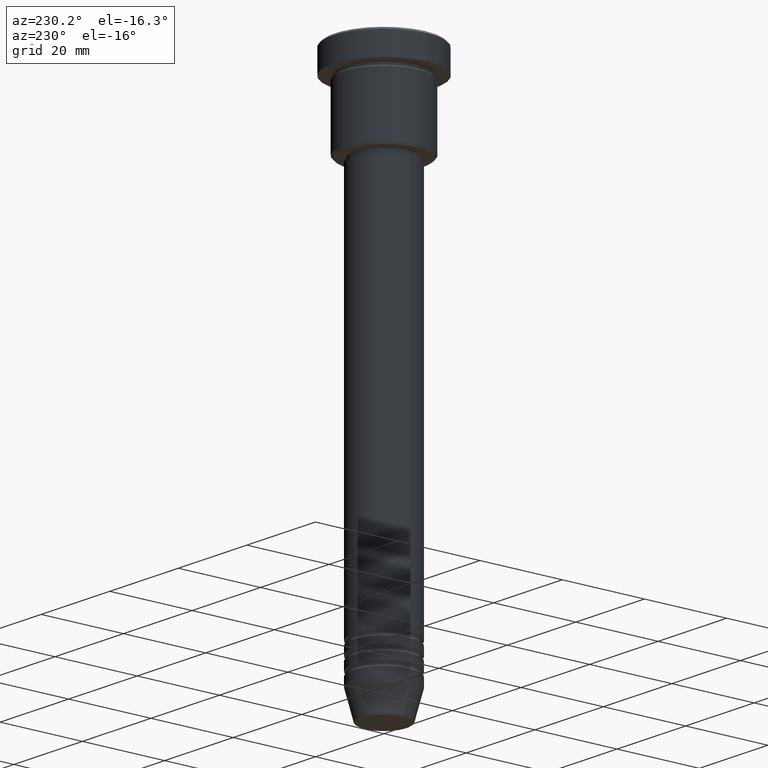
[diagram: clean part render]
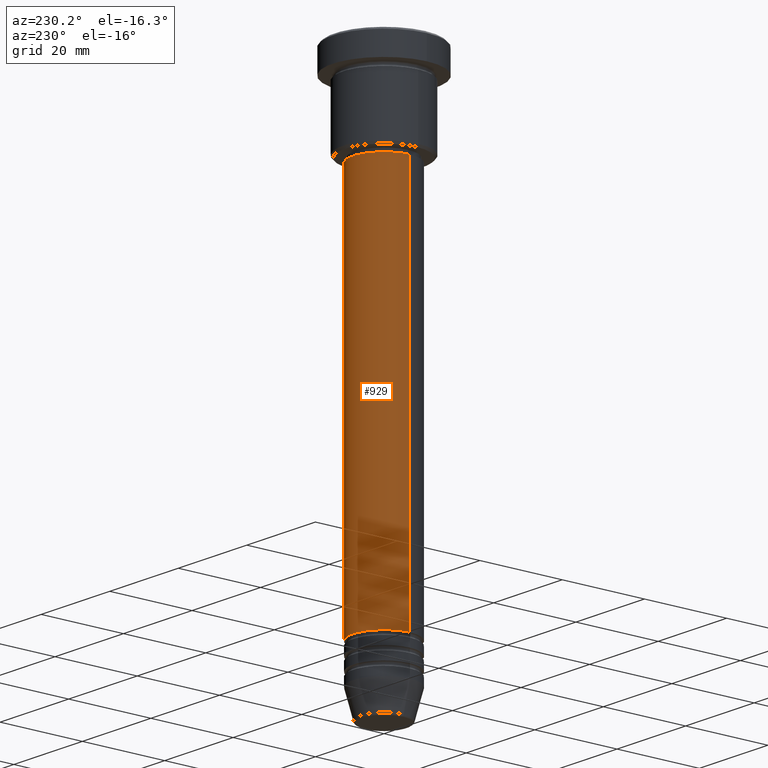
[diagram: same view with one face highlighted and labeled with its STEP entity id]
A machine part, auxiliary view. The second image highlights one B-rep face of the part: STEP entity #929.
In plain terms, the highlighted cylindrical surface (partial cylindrical patch) has radius 7.5 mm, axis along (-0, -0, 1).
Its self-contained STEP definition (entity closure, byte-faithful):
#7 = DIRECTION ( 'NONE',  ( -0.000000000000000000, -0.000000000000000000, 1.000000000000000000 ) ) ;
#33 = CARTESIAN_POINT ( 'NONE',  ( 7.500000000000000000, 0.000000000000000000, -115.9999999999999574 ) ) ;
#108 = AXIS2_PLACEMENT_3D ( 'NONE', #641, #7, #1001 ) ;
#127 = EDGE_CURVE ( 'NONE', #453, #673, #178, .T. ) ;
#174 = VECTOR ( 'NONE', #539, 1000.000000000000000 ) ;
#178 = LINE ( 'NONE', #335, #174 ) ;
#214 = DIRECTION ( 'NONE',  ( -0.000000000000000000, -0.000000000000000000, 1.000000000000000000 ) ) ;
#307 = CARTESIAN_POINT ( 'NONE',  ( 0.000000000000000000, 0.000000000000000000, -115.9999999999999574 ) ) ;
#335 = CARTESIAN_POINT ( 'NONE',  ( 7.500000000000000000, 0.000000000000000000, 0.000000000000000000 ) ) ;
#396 = VERTEX_POINT ( 'NONE', #856 ) ;
#426 = ORIENTED_EDGE ( 'NONE', *, *, #490, .T. ) ;
#428 = VERTEX_POINT ( 'NONE', #582 ) ;
#432 = ORIENTED_EDGE ( 'NONE', *, *, #127, .F. ) ;
#444 = AXIS2_PLACEMENT_3D ( 'NONE', #307, #489, #665 ) ;
#447 = AXIS2_PLACEMENT_3D ( 'NONE', #680, #214, #667 ) ;
#453 = VERTEX_POINT ( 'NONE', #33 ) ;
#485 = VECTOR ( 'NONE', #913, 1000.000000000000000 ) ;
#489 = DIRECTION ( 'NONE',  ( -0.000000000000000000, -0.000000000000000000, 1.000000000000000000 ) ) ;
#490 = EDGE_CURVE ( 'NONE', #453, #428, #961, .T. ) ;
#539 = DIRECTION ( 'NONE',  ( -0.000000000000000000, -0.000000000000000000, 1.000000000000000000 ) ) ;
#582 = CARTESIAN_POINT ( 'NONE',  ( -7.500000000000000000, 9.184850993605147944E-16, -115.9999999999999574 ) ) ;
#641 = CARTESIAN_POINT ( 'NONE',  ( 0.000000000000000000, 0.000000000000000000, -23.00000000000000000 ) ) ;
#664 = FACE_OUTER_BOUND ( 'NONE', #803, .T. ) ;
#665 = DIRECTION ( 'NONE',  ( 1.000000000000000000, 0.000000000000000000, 0.000000000000000000 ) ) ;
#667 = DIRECTION ( 'NONE',  ( 1.000000000000000000, 0.000000000000000000, 0.000000000000000000 ) ) ;
#673 = VERTEX_POINT ( 'NONE', #1024 ) ;
#680 = CARTESIAN_POINT ( 'NONE',  ( 0.000000000000000000, 0.000000000000000000, 0.000000000000000000 ) ) ;
#794 = ORIENTED_EDGE ( 'NONE', *, *, #1108, .F. ) ;
#803 = EDGE_LOOP ( 'NONE', ( #426, #1059, #794, #432 ) ) ;
#832 = CIRCLE ( 'NONE', #108, 7.500000000000000000 ) ;
#856 = CARTESIAN_POINT ( 'NONE',  ( -7.500000000000000000, 9.184850993605147944E-16, -23.00000000000000000 ) ) ;
#913 = DIRECTION ( 'NONE',  ( -0.000000000000000000, -0.000000000000000000, 1.000000000000000000 ) ) ;
#929 = ADVANCED_FACE ( 'NONE', ( #664 ), #1033, .T. ) ;
#961 = CIRCLE ( 'NONE', #444, 7.500000000000000000 ) ;
#1001 = DIRECTION ( 'NONE',  ( 1.000000000000000000, 0.000000000000000000, 0.000000000000000000 ) ) ;
#1011 = CARTESIAN_POINT ( 'NONE',  ( -7.500000000000000000, 9.184850993605147944E-16, 0.000000000000000000 ) ) ;
#1024 = CARTESIAN_POINT ( 'NONE',  ( 7.500000000000000000, 0.000000000000000000, -23.00000000000000000 ) ) ;
#1033 = CYLINDRICAL_SURFACE ( 'NONE', #447, 7.500000000000000000 ) ;
#1059 = ORIENTED_EDGE ( 'NONE', *, *, #1139, .T. ) ;
#1108 = EDGE_CURVE ( 'NONE', #673, #396, #832, .T. ) ;
#1139 = EDGE_CURVE ( 'NONE', #428, #396, #1181, .T. ) ;
#1181 = LINE ( 'NONE', #1011, #485 ) ;